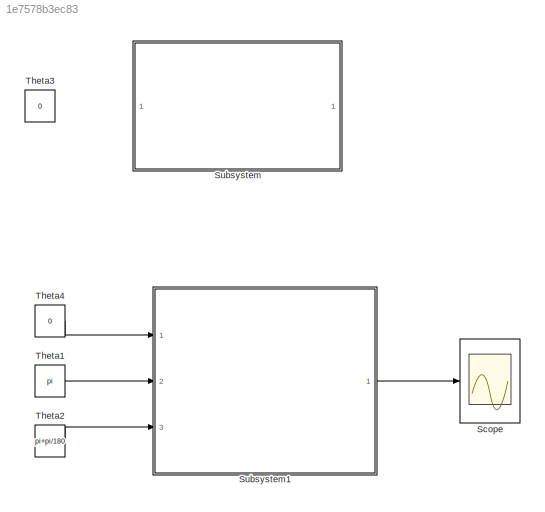
MODEL slx_1e7578b3ec83
KIND model
CONFIG AbsTol = auto
CONFIG FixedStep = 0.0001
CONFIG MaxStep = auto
CONFIG MinStep = auto
CONFIG RelTol = 1e-3
CONFIG SampleTimeConstraint = Unconstrained
CONFIG Solver = ode4
CONFIG SolverMode = Auto
CONFIG SolverName = ode4
CONFIG StartTime = 0.0
CONFIG StopTime = 10
BLOCK [Scope] Scope
  DataFormat = StructureWithTime
  Floating = off
  LimitDataPoints = off
  NumInputPorts = 1
  Ports = [1]
  SampleTime = 0
  SaveName = ScopeData1
  TimeRange = 14.3
  YMax = 5000
  YMin = -40000
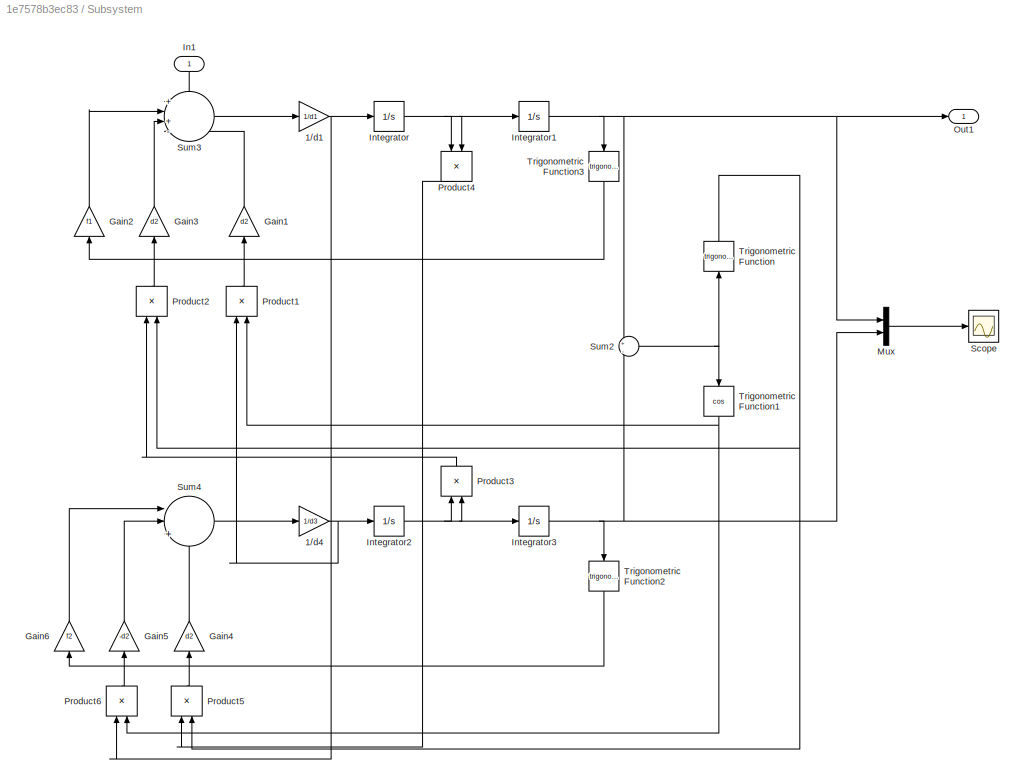
BLOCK [SubSystem] Subsystem
  Ports = [1, 1]
  RequestExecContextInheritance = off
BLOCK [Gain] Subsystem/1//d1
  Gain = 1/d1
  OutDataTypeStr = Inherit: Inherit via internal rule
  ParamDataTypeStr = Inherit: Inherit via internal rule
  SaturateOnIntegerOverflow = off
BLOCK [Gain] Subsystem/1//d4
  Gain = 1/d3
  OutDataTypeStr = Inherit: Inherit via internal rule
  ParamDataTypeStr = Inherit: Inherit via internal rule
  SaturateOnIntegerOverflow = off
BLOCK [Gain] Subsystem/Gain1
  Gain = d2
  OutDataTypeStr = Inherit: Inherit via internal rule
  ParamDataTypeStr = Inherit: Inherit via internal rule
  SaturateOnIntegerOverflow = off
BLOCK [Gain] Subsystem/Gain2
  Gain = f1
  OutDataTypeStr = Inherit: Inherit via internal rule
  ParamDataTypeStr = Inherit: Inherit via internal rule
  SaturateOnIntegerOverflow = off
BLOCK [Gain] Subsystem/Gain3
  Gain = d2
  OutDataTypeStr = Inherit: Inherit via internal rule
  ParamDataTypeStr = Inherit: Inherit via internal rule
  SaturateOnIntegerOverflow = off
BLOCK [Gain] Subsystem/Gain4
  Gain = d2
  OutDataTypeStr = Inherit: Inherit via internal rule
  ParamDataTypeStr = Inherit: Inherit via internal rule
  SaturateOnIntegerOverflow = off
BLOCK [Gain] Subsystem/Gain5
  Gain = -d2
  OutDataTypeStr = Inherit: Inherit via internal rule
  ParamDataTypeStr = Inherit: Inherit via internal rule
  SaturateOnIntegerOverflow = off
BLOCK [Gain] Subsystem/Gain6
  Gain = f2
  OutDataTypeStr = Inherit: Inherit via internal rule
  ParamDataTypeStr = Inherit: Inherit via internal rule
  SaturateOnIntegerOverflow = off
BLOCK [Inport] Subsystem/In1
  IconDisplay = Port number
BLOCK [Integrator] Subsystem/Integrator
  Ports = [1, 1]
BLOCK [Integrator] Subsystem/Integrator1
  InitialCondition = pi+pi/180
  Ports = [1, 1]
BLOCK [Integrator] Subsystem/Integrator2
  Ports = [1, 1]
BLOCK [Integrator] Subsystem/Integrator3
  InitialCondition = pi
  Ports = [1, 1]
BLOCK [Mux] Subsystem/Mux
  DisplayOption = bar
  Inputs = 2
  Ports = [2, 1]
BLOCK [Outport] Subsystem/Out1
  IconDisplay = Port number
BLOCK [Product] Subsystem/Product1
  InputSameDT = off
  OutDataTypeStr = Inherit: Inherit via internal rule
  Ports = [2, 1]
  RndMeth = Floor
  SaturateOnIntegerOverflow = off
BLOCK [Product] Subsystem/Product2
  InputSameDT = off
  OutDataTypeStr = Inherit: Inherit via internal rule
  Ports = [2, 1]
  RndMeth = Floor
  SaturateOnIntegerOverflow = off
BLOCK [Product] Subsystem/Product3
  InputSameDT = off
  OutDataTypeStr = Inherit: Inherit via internal rule
  Ports = [2, 1]
  RndMeth = Floor
  SaturateOnIntegerOverflow = off
BLOCK [Product] Subsystem/Product4
  InputSameDT = off
  OutDataTypeStr = Inherit: Inherit via internal rule
  Ports = [2, 1]
  RndMeth = Floor
  SaturateOnIntegerOverflow = off
BLOCK [Product] Subsystem/Product5
  InputSameDT = off
  OutDataTypeStr = Inherit: Inherit via internal rule
  Ports = [2, 1]
  RndMeth = Floor
  SaturateOnIntegerOverflow = off
BLOCK [Product] Subsystem/Product6
  InputSameDT = off
  OutDataTypeStr = Inherit: Inherit via internal rule
  Ports = [2, 1]
  RndMeth = Floor
  SaturateOnIntegerOverflow = off
BLOCK [Scope] Subsystem/Scope
  Floating = off
  LegendLocations = 0.85418     0.90254    0.076125    0.044226
  LimitDataPoints = off
  NumInputPorts = 1
  Ports = [1]
  ShowLegends = on
  TimeRange = 0.2981333764624514
  YMax = 3.1415936
  YMin = 3.1415916
  ZoomMode = yonly
BLOCK [Sum] Subsystem/Sum2
  IconShape = round
  InputSameDT = off
  Inputs = +|-
  OutDataTypeStr = Inherit: Inherit via internal rule
  Ports = [2, 1]
  SaturateOnIntegerOverflow = off
BLOCK [Sum] Subsystem/Sum3
  IconShape = round
  InputSameDT = off
  Inputs = +|+-|-
  OutDataTypeStr = Inherit: Inherit via internal rule
  Ports = [4, 1]
  SaturateOnIntegerOverflow = off
BLOCK [Sum] Subsystem/Sum4
  IconShape = round
  InputSameDT = off
  Inputs = ||+++
  OutDataTypeStr = Inherit: Inherit via internal rule
  Ports = [3, 1]
  SaturateOnIntegerOverflow = off
BLOCK [Trigonometry] Subsystem/Trigonometric Function
  Ports = [1, 1]
BLOCK [Trigonometry] Subsystem/Trigonometric Function1
  Operator = cos
  Ports = [1, 1]
BLOCK [Trigonometry] Subsystem/Trigonometric Function2
  Ports = [1, 1]
BLOCK [Trigonometry] Subsystem/Trigonometric Function3
  Ports = [1, 1]
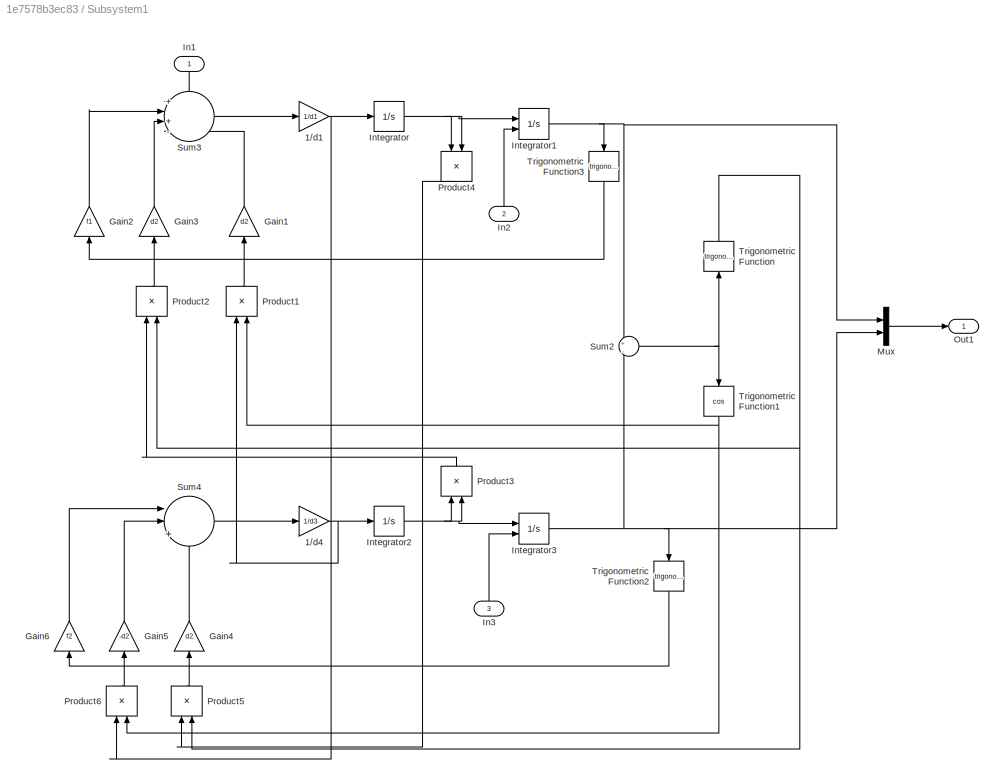
BLOCK [SubSystem] Subsystem1
  Ports = [3, 1]
  RequestExecContextInheritance = off
BLOCK [Gain] Subsystem1/1//d1
  Gain = 1/d1
  OutDataTypeStr = Inherit: Inherit via internal rule
  ParamDataTypeStr = Inherit: Inherit via internal rule
  SaturateOnIntegerOverflow = off
BLOCK [Gain] Subsystem1/1//d4
  Gain = 1/d3
  OutDataTypeStr = Inherit: Inherit via internal rule
  ParamDataTypeStr = Inherit: Inherit via internal rule
  SaturateOnIntegerOverflow = off
BLOCK [Gain] Subsystem1/Gain1
  Gain = d2
  OutDataTypeStr = Inherit: Inherit via internal rule
  ParamDataTypeStr = Inherit: Inherit via internal rule
  SaturateOnIntegerOverflow = off
BLOCK [Gain] Subsystem1/Gain2
  Gain = f1
  OutDataTypeStr = Inherit: Inherit via internal rule
  ParamDataTypeStr = Inherit: Inherit via internal rule
  SaturateOnIntegerOverflow = off
BLOCK [Gain] Subsystem1/Gain3
  Gain = d2
  OutDataTypeStr = Inherit: Inherit via internal rule
  ParamDataTypeStr = Inherit: Inherit via internal rule
  SaturateOnIntegerOverflow = off
BLOCK [Gain] Subsystem1/Gain4
  Gain = d2
  OutDataTypeStr = Inherit: Inherit via internal rule
  ParamDataTypeStr = Inherit: Inherit via internal rule
  SaturateOnIntegerOverflow = off
BLOCK [Gain] Subsystem1/Gain5
  Gain = -d2
  OutDataTypeStr = Inherit: Inherit via internal rule
  ParamDataTypeStr = Inherit: Inherit via internal rule
  SaturateOnIntegerOverflow = off
BLOCK [Gain] Subsystem1/Gain6
  Gain = f2
  OutDataTypeStr = Inherit: Inherit via internal rule
  ParamDataTypeStr = Inherit: Inherit via internal rule
  SaturateOnIntegerOverflow = off
BLOCK [Inport] Subsystem1/In1
  IconDisplay = Port number
BLOCK [Inport] Subsystem1/In2
  IconDisplay = Port number
  Port = 2
BLOCK [Inport] Subsystem1/In3
  IconDisplay = Port number
  Port = 3
BLOCK [Integrator] Subsystem1/Integrator
  Ports = [1, 1]
BLOCK [Integrator] Subsystem1/Integrator1
  InitialConditionSource = external
  Ports = [2, 1]
BLOCK [Integrator] Subsystem1/Integrator2
  Ports = [1, 1]
BLOCK [Integrator] Subsystem1/Integrator3
  InitialConditionSource = external
  Ports = [2, 1]
BLOCK [Mux] Subsystem1/Mux
  DisplayOption = bar
  Inputs = 2
  Ports = [2, 1]
BLOCK [Outport] Subsystem1/Out1
  IconDisplay = Port number
BLOCK [Product] Subsystem1/Product1
  InputSameDT = off
  OutDataTypeStr = Inherit: Inherit via internal rule
  Ports = [2, 1]
  RndMeth = Floor
  SaturateOnIntegerOverflow = off
BLOCK [Product] Subsystem1/Product2
  InputSameDT = off
  OutDataTypeStr = Inherit: Inherit via internal rule
  Ports = [2, 1]
  RndMeth = Floor
  SaturateOnIntegerOverflow = off
BLOCK [Product] Subsystem1/Product3
  InputSameDT = off
  OutDataTypeStr = Inherit: Inherit via internal rule
  Ports = [2, 1]
  RndMeth = Floor
  SaturateOnIntegerOverflow = off
BLOCK [Product] Subsystem1/Product4
  InputSameDT = off
  OutDataTypeStr = Inherit: Inherit via internal rule
  Ports = [2, 1]
  RndMeth = Floor
  SaturateOnIntegerOverflow = off
BLOCK [Product] Subsystem1/Product5
  InputSameDT = off
  OutDataTypeStr = Inherit: Inherit via internal rule
  Ports = [2, 1]
  RndMeth = Floor
  SaturateOnIntegerOverflow = off
BLOCK [Product] Subsystem1/Product6
  InputSameDT = off
  OutDataTypeStr = Inherit: Inherit via internal rule
  Ports = [2, 1]
  RndMeth = Floor
  SaturateOnIntegerOverflow = off
BLOCK [Sum] Subsystem1/Sum2
  IconShape = round
  InputSameDT = off
  Inputs = +|-
  OutDataTypeStr = Inherit: Inherit via internal rule
  Ports = [2, 1]
  SaturateOnIntegerOverflow = off
BLOCK [Sum] Subsystem1/Sum3
  IconShape = round
  InputSameDT = off
  Inputs = +|+-|-
  OutDataTypeStr = Inherit: Inherit via internal rule
  Ports = [4, 1]
  SaturateOnIntegerOverflow = off
BLOCK [Sum] Subsystem1/Sum4
  IconShape = round
  InputSameDT = off
  Inputs = ||+++
  OutDataTypeStr = Inherit: Inherit via internal rule
  Ports = [3, 1]
  SaturateOnIntegerOverflow = off
BLOCK [Trigonometry] Subsystem1/Trigonometric Function
  Ports = [1, 1]
BLOCK [Trigonometry] Subsystem1/Trigonometric Function1
  Operator = cos
  Ports = [1, 1]
BLOCK [Trigonometry] Subsystem1/Trigonometric Function2
  Ports = [1, 1]
BLOCK [Trigonometry] Subsystem1/Trigonometric Function3
  Ports = [1, 1]
BLOCK [Constant] Theta1
  Value = pi
BLOCK [Constant] Theta2
  Value = pi+pi/180
BLOCK [Constant] Theta3
  Value = 0
BLOCK [Constant] Theta4
  Value = 0
NET Subsystem/1//d1:1 -> Subsystem/Integrator:1, Subsystem/Product6:1
NET Subsystem/1//d4:1 -> Subsystem/Integrator2:1, Subsystem/Product1:1
LINE Subsystem/Gain1:1 -> Subsystem/Sum3:4
LINE Subsystem/Gain2:1 -> Subsystem/Sum3:2
LINE Subsystem/Gain3:1 -> Subsystem/Sum3:3
LINE Subsystem/Gain4:1 -> Subsystem/Sum4:3
LINE Subsystem/Gain5:1 -> Subsystem/Sum4:2
LINE Subsystem/Gain6:1 -> Subsystem/Sum4:1
LINE Subsystem/In1:1 -> Subsystem/Sum3:1
NET Subsystem/Integrator1:1 -> Subsystem/Mux:1, Subsystem/Out1:1, Subsystem/Sum2:1, Subsystem/Trigonometric Function3:1
NET Subsystem/Integrator2:1 -> Subsystem/Integrator3:1, Subsystem/Product3:1, Subsystem/Product3:2
NET Subsystem/Integrator3:1 -> Subsystem/Mux:2, Subsystem/Sum2:2, Subsystem/Trigonometric Function2:1
NET Subsystem/Integrator:1 -> Subsystem/Integrator1:1, Subsystem/Product4:1, Subsystem/Product4:2
LINE Subsystem/Mux:1 -> Subsystem/Scope:1
LINE Subsystem/Product1:1 -> Subsystem/Gain1:1
LINE Subsystem/Product2:1 -> Subsystem/Gain3:1
LINE Subsystem/Product3:1 -> Subsystem/Product2:1
LINE Subsystem/Product4:1 -> Subsystem/Product5:1
LINE Subsystem/Product5:1 -> Subsystem/Gain4:1
LINE Subsystem/Product6:1 -> Subsystem/Gain5:1
NET Subsystem/Sum2:1 -> Subsystem/Trigonometric Function1:1, Subsystem/Trigonometric Function:1
LINE Subsystem/Sum3:1 -> Subsystem/1//d1:1
LINE Subsystem/Sum4:1 -> Subsystem/1//d4:1
NET Subsystem/Trigonometric Function1:1 -> Subsystem/Product1:2, Subsystem/Product6:2
LINE Subsystem/Trigonometric Function2:1 -> Subsystem/Gain6:1
LINE Subsystem/Trigonometric Function3:1 -> Subsystem/Gain2:1
NET Subsystem/Trigonometric Function:1 -> Subsystem/Product2:2, Subsystem/Product5:2
NET Subsystem1/1//d1:1 -> Subsystem1/Integrator:1, Subsystem1/Product6:1
NET Subsystem1/1//d4:1 -> Subsystem1/Integrator2:1, Subsystem1/Product1:1
LINE Subsystem1/Gain1:1 -> Subsystem1/Sum3:4
LINE Subsystem1/Gain2:1 -> Subsystem1/Sum3:2
LINE Subsystem1/Gain3:1 -> Subsystem1/Sum3:3
LINE Subsystem1/Gain4:1 -> Subsystem1/Sum4:3
LINE Subsystem1/Gain5:1 -> Subsystem1/Sum4:2
LINE Subsystem1/Gain6:1 -> Subsystem1/Sum4:1
LINE Subsystem1/In1:1 -> Subsystem1/Sum3:1
LINE Subsystem1/In2:1 -> Subsystem1/Integrator1:2
LINE Subsystem1/In3:1 -> Subsystem1/Integrator3:2
NET Subsystem1/Integrator1:1 -> Subsystem1/Mux:1, Subsystem1/Sum2:1, Subsystem1/Trigonometric Function3:1
NET Subsystem1/Integrator2:1 -> Subsystem1/Integrator3:1, Subsystem1/Product3:1, Subsystem1/Product3:2
NET Subsystem1/Integrator3:1 -> Subsystem1/Mux:2, Subsystem1/Sum2:2, Subsystem1/Trigonometric Function2:1
NET Subsystem1/Integrator:1 -> Subsystem1/Integrator1:1, Subsystem1/Product4:1, Subsystem1/Product4:2
LINE Subsystem1/Mux:1 -> Subsystem1/Out1:1
LINE Subsystem1/Product1:1 -> Subsystem1/Gain1:1
LINE Subsystem1/Product2:1 -> Subsystem1/Gain3:1
LINE Subsystem1/Product3:1 -> Subsystem1/Product2:1
LINE Subsystem1/Product4:1 -> Subsystem1/Product5:1
LINE Subsystem1/Product5:1 -> Subsystem1/Gain4:1
LINE Subsystem1/Product6:1 -> Subsystem1/Gain5:1
NET Subsystem1/Sum2:1 -> Subsystem1/Trigonometric Function1:1, Subsystem1/Trigonometric Function:1
LINE Subsystem1/Sum3:1 -> Subsystem1/1//d1:1
LINE Subsystem1/Sum4:1 -> Subsystem1/1//d4:1
NET Subsystem1/Trigonometric Function1:1 -> Subsystem1/Product1:2, Subsystem1/Product6:2
LINE Subsystem1/Trigonometric Function2:1 -> Subsystem1/Gain6:1
LINE Subsystem1/Trigonometric Function3:1 -> Subsystem1/Gain2:1
NET Subsystem1/Trigonometric Function:1 -> Subsystem1/Product2:2, Subsystem1/Product5:2
LINE Subsystem1:1 -> Scope:1
LINE Theta1:1 -> Subsystem1:2
LINE Theta2:1 -> Subsystem1:3
LINE Theta4:1 -> Subsystem1:1
note: NET lines group one-source signal fan-out (src -> all destinations, sorted); 1:1 wires keep LINE
